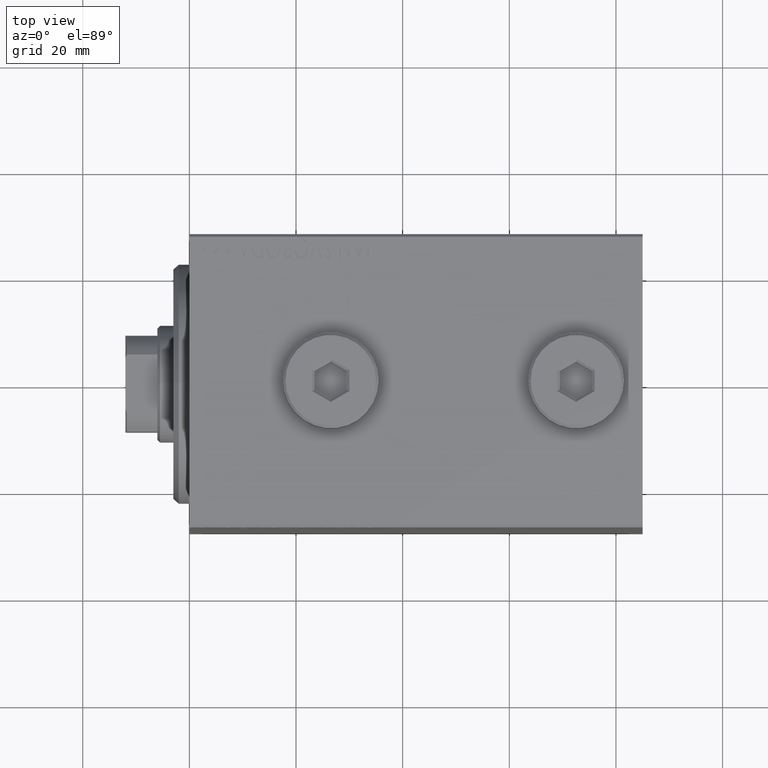
[diagram: clean part render]
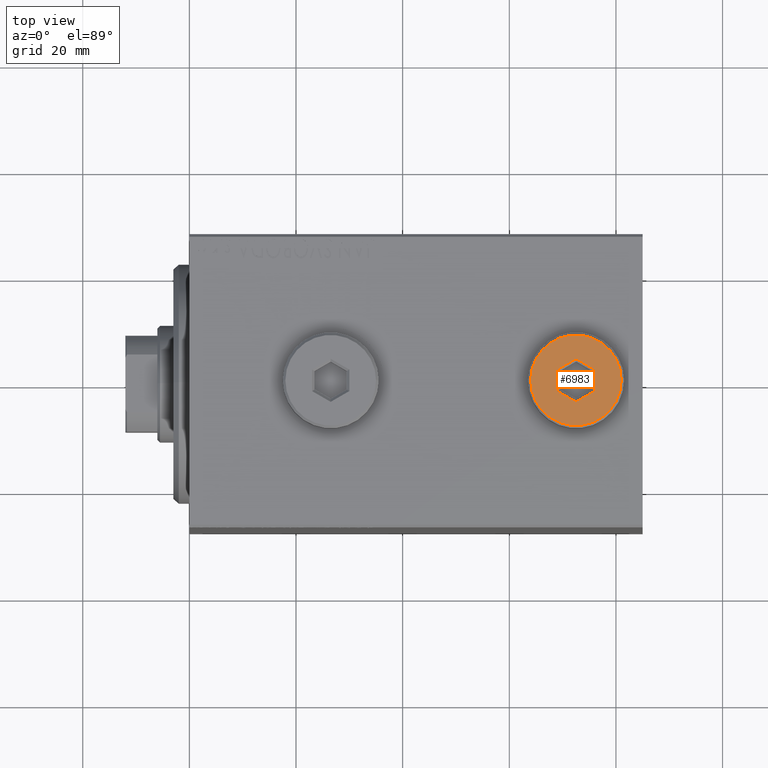
[diagram: same view with one face highlighted and labeled with its STEP entity id]
A machine part, top view. The second image highlights one B-rep face of the part: STEP entity #6983.
In plain terms, the highlighted planar face has unit normal (0, 0, 1).
Its self-contained STEP definition (entity closure, byte-faithful):
#184 = CARTESIAN_POINT ( 'NONE',  ( 3.500000000000006661, -1.732050807568878303, 5.000000000000000000 ) ) ;
#1600 = ORIENTED_EDGE ( 'NONE', *, *, #30553, .T. ) ;
#1833 = ORIENTED_EDGE ( 'NONE', *, *, #35670, .T. ) ;
#2062 = LINE ( 'NONE', #16118, #11186 ) ;
#3359 = DIRECTION ( 'NONE',  ( 0.8660254037844387076, 0.4999999999999998335, 0.000000000000000000 ) ) ;
#3589 = CARTESIAN_POINT ( 'NONE',  ( 0.000000000000000000, 0.000000000000000000, 5.000000000000000000 ) ) ;
#5517 = VERTEX_POINT ( 'NONE', #45283 ) ;
#6606 = ORIENTED_EDGE ( 'NONE', *, *, #22088, .T. ) ;
#6804 = LINE ( 'NONE', #37451, #40386 ) ;
#6883 = EDGE_CURVE ( 'NONE', #19069, #34449, #6804, .T. ) ;
#6983 = ADVANCED_FACE ( 'NONE', ( #18304, #35145 ), #42517, .T. ) ;
#8787 = VERTEX_POINT ( 'NONE', #29308 ) ;
#9328 = LINE ( 'NONE', #18073, #19783 ) ;
#11186 = VECTOR ( 'NONE', #30173, 1000.000000000000000 ) ;
#11907 = CARTESIAN_POINT ( 'NONE',  ( -3.250000000000003109, -2.165063509461102598, 5.000000000000000000 ) ) ;
#12800 = DIRECTION ( 'NONE',  ( -0.8660254037844385966, 0.4999999999999999445, 0.000000000000000000 ) ) ;
#12896 = CARTESIAN_POINT ( 'NONE',  ( 0.000000000000000000, 0.000000000000000000, 5.000000000000000000 ) ) ;
#14021 = EDGE_CURVE ( 'NONE', #34449, #8787, #18457, .T. ) ;
#15159 = EDGE_CURVE ( 'NONE', #5517, #39418, #2062, .T. ) ;
#15201 = VECTOR ( 'NONE', #21376, 1000.000000000000000 ) ;
#16118 = CARTESIAN_POINT ( 'NONE',  ( 0.2500000000000027756, -3.897114317029979347, 5.000000000000000000 ) ) ;
#16615 = DIRECTION ( 'NONE',  ( 0.000000000000000000, 0.000000000000000000, 1.000000000000000000 ) ) ;
#16676 = CARTESIAN_POINT ( 'NONE',  ( -3.500000000000006661, -2.020725942163694278, 5.000000000000000000 ) ) ;
#17276 = ORIENTED_EDGE ( 'NONE', *, *, #15159, .T. ) ;
#18073 = CARTESIAN_POINT ( 'NONE',  ( -3.500000000000006661, 1.732050807568878081, 5.000000000000000000 ) ) ;
#18304 = FACE_BOUND ( 'NONE', #25411, .T. ) ;
#18314 = AXIS2_PLACEMENT_3D ( 'NONE', #12896, #27647, #19814 ) ;
#18457 = LINE ( 'NONE', #36652, #24417 ) ;
#19069 = VERTEX_POINT ( 'NONE', #41759 ) ;
#19783 = VECTOR ( 'NONE', #21081, 1000.000000000000000 ) ;
#19814 = DIRECTION ( 'NONE',  ( 1.000000000000000000, 0.000000000000000000, 0.000000000000000000 ) ) ;
#20304 = CARTESIAN_POINT ( 'NONE',  ( 0.000000000000000000, 0.000000000000000000, 5.000000000000000000 ) ) ;
#21081 = DIRECTION ( 'NONE',  ( 0.000000000000000000, 1.000000000000000000, 0.000000000000000000 ) ) ;
#21376 = DIRECTION ( 'NONE',  ( 0.000000000000000000, -1.000000000000000000, 0.000000000000000000 ) ) ;
#22088 = EDGE_CURVE ( 'NONE', #33075, #36408, #39217, .T. ) ;
#23766 = ORIENTED_EDGE ( 'NONE', *, *, #40990, .T. ) ;
#24417 = VECTOR ( 'NONE', #39657, 1000.000000000000000 ) ;
#24627 = CARTESIAN_POINT ( 'NONE',  ( -8.500000000000010658, 0.000000000000000000, 5.000000000000000000 ) ) ;
#25014 = DIRECTION ( 'NONE',  ( 0.000000000000000000, 0.000000000000000000, 1.000000000000000000 ) ) ;
#25411 = EDGE_LOOP ( 'NONE', ( #43064, #31951, #27021, #1600, #17276, #1833 ) ) ;
#25969 = LINE ( 'NONE', #11907, #31399 ) ;
#26664 = CARTESIAN_POINT ( 'NONE',  ( 1.590596867181068292E-15, 4.041451884327386779, 5.000000000000000000 ) ) ;
#27021 = ORIENTED_EDGE ( 'NONE', *, *, #14021, .T. ) ;
#27647 = DIRECTION ( 'NONE',  ( 0.000000000000000000, 0.000000000000000000, 1.000000000000000000 ) ) ;
#28143 = CARTESIAN_POINT ( 'NONE',  ( 8.500000000000010658, 1.071565949253934716E-15, 5.000000000000000000 ) ) ;
#29308 = CARTESIAN_POINT ( 'NONE',  ( 3.500000000000006661, 2.020725942163694722, 5.000000000000000000 ) ) ;
#29685 = VERTEX_POINT ( 'NONE', #16676 ) ;
#30173 = DIRECTION ( 'NONE',  ( -0.8660254037844387076, -0.4999999999999998890, 0.000000000000000000 ) ) ;
#30553 = EDGE_CURVE ( 'NONE', #8787, #5517, #31739, .T. ) ;
#31399 = VECTOR ( 'NONE', #12800, 1000.000000000000114 ) ;
#31739 = LINE ( 'NONE', #184, #15201 ) ;
#31951 = ORIENTED_EDGE ( 'NONE', *, *, #6883, .T. ) ;
#32364 = DIRECTION ( 'NONE',  ( 1.000000000000000000, 0.000000000000000000, -0.000000000000000000 ) ) ;
#33075 = VERTEX_POINT ( 'NONE', #28143 ) ;
#33462 = DIRECTION ( 'NONE',  ( 1.000000000000000000, 0.000000000000000000, 0.000000000000000000 ) ) ;
#34449 = VERTEX_POINT ( 'NONE', #26664 ) ;
#35145 = FACE_OUTER_BOUND ( 'NONE', #44890, .T. ) ;
#35230 = CIRCLE ( 'NONE', #18314, 8.500000000000010658 ) ;
#35535 = AXIS2_PLACEMENT_3D ( 'NONE', #20304, #16615, #33462 ) ;
#35670 = EDGE_CURVE ( 'NONE', #39418, #29685, #25969, .T. ) ;
#36408 = VERTEX_POINT ( 'NONE', #24627 ) ;
#36652 = CARTESIAN_POINT ( 'NONE',  ( 3.250000000000003109, 2.165063509461103042, 5.000000000000000000 ) ) ;
#37451 = CARTESIAN_POINT ( 'NONE',  ( -0.2500000000000027756, 3.897114317029978459, 5.000000000000000000 ) ) ;
#38184 = AXIS2_PLACEMENT_3D ( 'NONE', #3589, #25014, #32364 ) ;
#39217 = CIRCLE ( 'NONE', #35535, 8.500000000000010658 ) ;
#39418 = VERTEX_POINT ( 'NONE', #45390 ) ;
#39657 = DIRECTION ( 'NONE',  ( 0.8660254037844387076, -0.4999999999999998890, 0.000000000000000000 ) ) ;
#40386 = VECTOR ( 'NONE', #3359, 1000.000000000000000 ) ;
#40636 = EDGE_CURVE ( 'NONE', #29685, #19069, #9328, .T. ) ;
#40990 = EDGE_CURVE ( 'NONE', #36408, #33075, #35230, .T. ) ;
#41759 = CARTESIAN_POINT ( 'NONE',  ( -3.500000000000006661, 2.020725942163692945, 5.000000000000000000 ) ) ;
#42517 = PLANE ( 'NONE',  #38184 ) ;
#43064 = ORIENTED_EDGE ( 'NONE', *, *, #40636, .T. ) ;
#44890 = EDGE_LOOP ( 'NONE', ( #23766, #6606 ) ) ;
#45283 = CARTESIAN_POINT ( 'NONE',  ( 3.500000000000006661, -2.020725942163693833, 5.000000000000000000 ) ) ;
#45390 = CARTESIAN_POINT ( 'NONE',  ( -1.006139216460143630E-15, -4.041451884327387667, 5.000000000000000000 ) ) ;